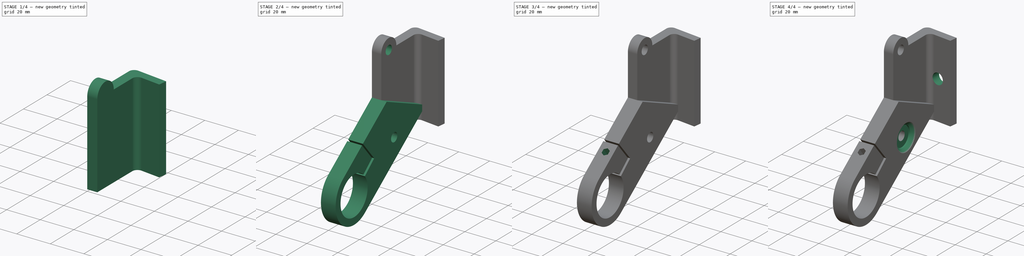
[diagram: build sequence overview — one tinted view per stage of 4, left to right]
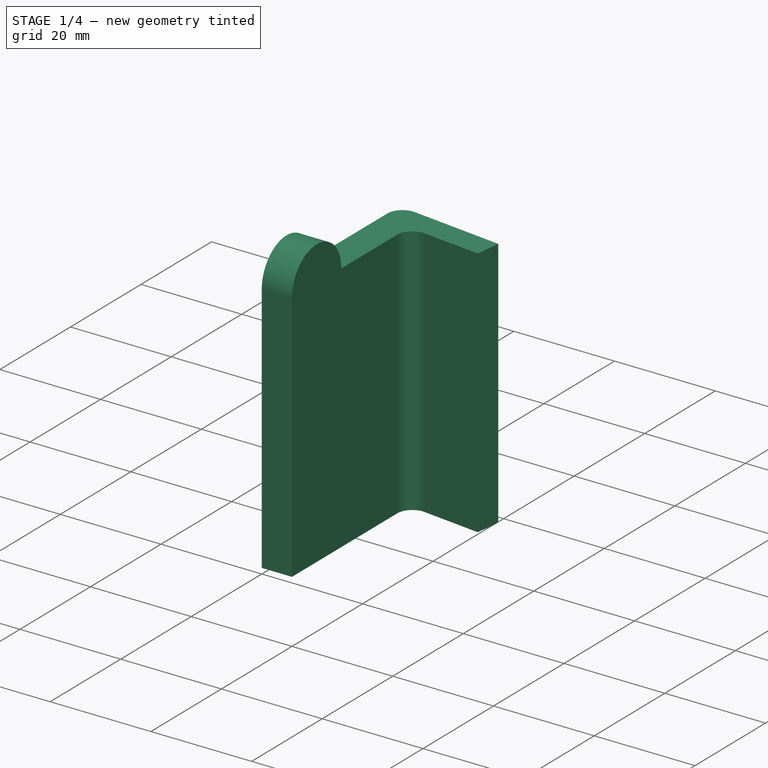
[diagram: stage 1 of 4 — iso view after this stage's code; geometry added in this stage tinted green]
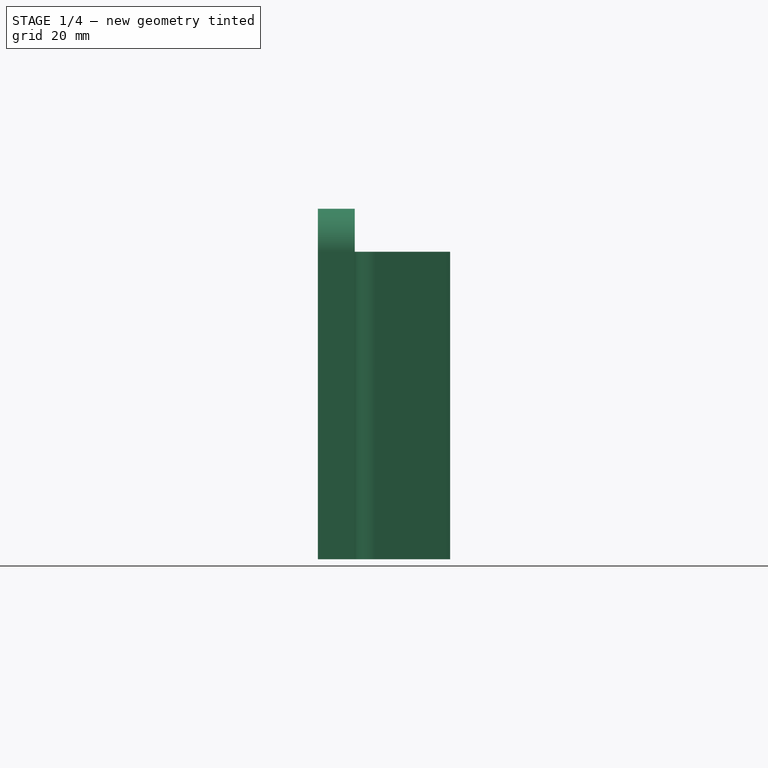
[diagram: stage 1 of 4 — front view after this stage's code; geometry added in this stage tinted green]
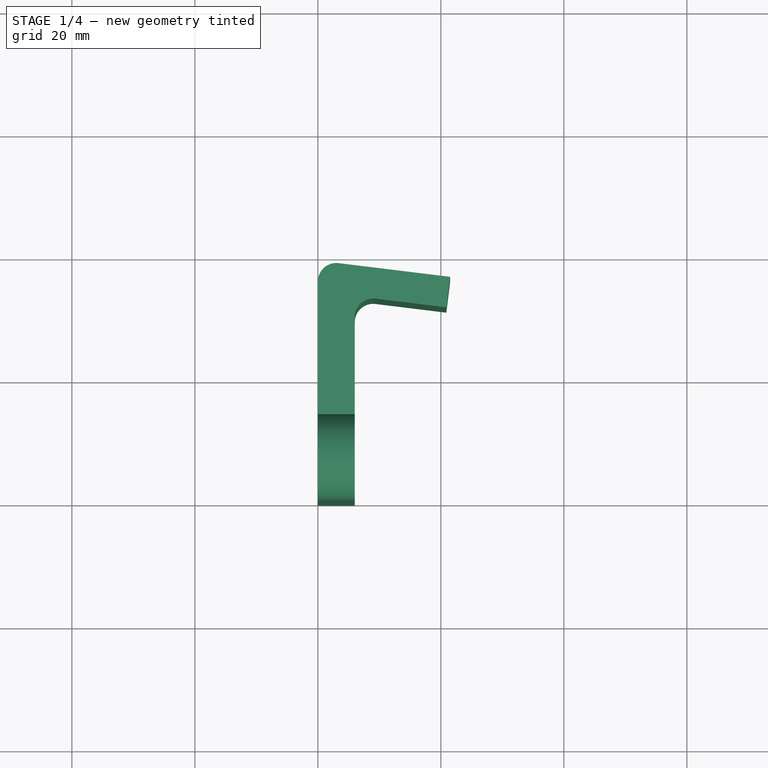
[diagram: stage 1 of 4 — top view after this stage's code; geometry added in this stage tinted green]
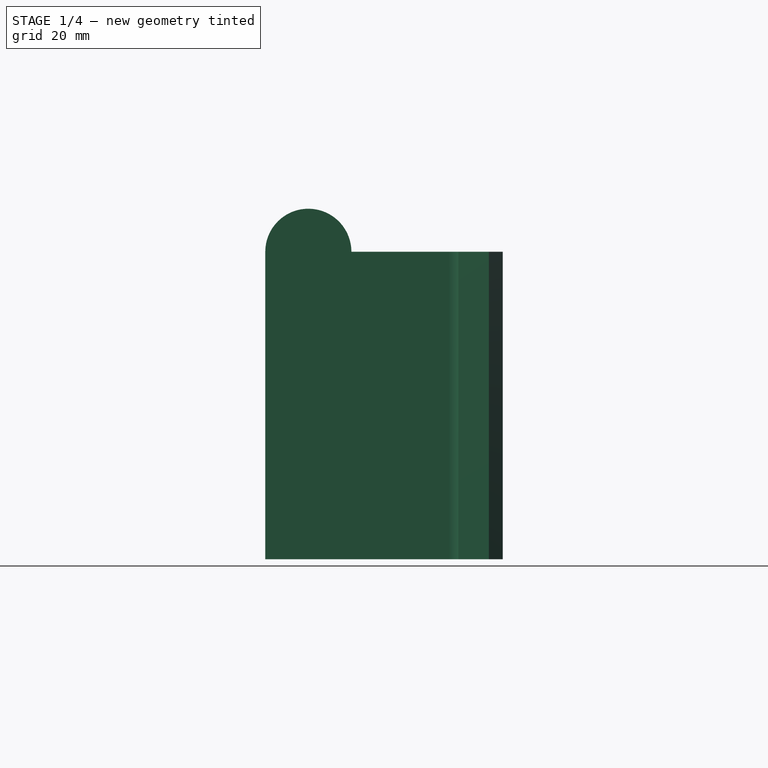
[diagram: stage 1 of 4 — right view after this stage's code; geometry added in this stage tinted green]
FCSTD DOCUMENT  (FreeCAD 0.19R)
Label: TailLightBracketForRack_Dual
License: All rights reserved
LicenseURL: http://en.wikipedia.org/wiki/All_rights_reserved
objects: Sketcher::SketchObject×11, PartDesign::Pocket×6, PartDesign::Pad×3, PartDesign::Fillet×1, PartDesign::Chamfer×1, PartDesign::Body×1, App::Part×1
note: 34 computed .brp shape members not serialized (recipe doc carries the construction recipe); baked Part::Feature solids carry a one-line shape summary decoded from their .brp

FEATURE [Sketcher::SketchObject] Sketch007
  FullyConstrained = true
  MapMode = 5
  Support = -> [XY_Plane001]
  sketch-geometry (6):
    g0: LineSegment StartX=0 StartY=0 StartZ=0 EndX=6 EndY=0 EndZ=0
    g1: LineSegment StartX=6 StartY=0 StartZ=0 EndX=6 EndY=33.2257 EndZ=0
    g2: LineSegment StartX=6 StartY=33.2257 StartZ=0 EndX=20.8882 EndY=31.3977 EndZ=0
    g3: LineSegment StartX=20.8882 StartY=31.3977 StartZ=0 EndX=21.4975 EndY=36.3604 EndZ=0
    g4: LineSegment StartX=21.4975 StartY=36.3604 StartZ=0 EndX=0 EndY=39 EndZ=0
    g5: LineSegment StartX=0 StartY=39 StartZ=0 EndX=0 EndY=0 EndZ=0
  constraints (17):
    c: PointOnObject(g0,g-1)
    c: Coincident(g0,g1)
    c: Vertical(g1)
    c: Coincident(g1,g2)
    c: Coincident(g2,g3)
    c: Coincident(g3,g4)
    c: Coincident(g4,g5)
    c: Coincident(g5,g0)
    c: Vertical(g5)
    c: Distance(g0) = 6
    c: Parallel(g2,g4)
    c: Perpendicular(g3,g2)
    c: Distance(g3) = 5
    c: Distance(g5) = 39
    c: Angle(g4) = 3.01942
    c: Distance(g2) = 15
    c: Coincident(g0,g-1)
FEATURE [PartDesign::Pad] Pad
  AllowMultiFace = false
  Direction = (1,1,1)
  Length = 50
  Length2 = 100
  Midplane = true
  Profile = -> Sketch007
  Type = 0
FEATURE [PartDesign::Fillet] Fillet
  Base = -> Pad [Edge14,Edge5]
  BaseFeature = -> Pad
  Radius = 3
  SupportTransform = false
FEATURE [Sketcher::SketchObject] Sketch009
  FullyConstrained = true
  MapMode = 5
  Placement = pos=(0,0,0) rot=(0.57735,-0.57735,-0.57735;2.0944rad)
  Support = -> [Fillet]
  sketch-geometry (2):
    g0: Circle CenterX=-7 CenterY=-25 CenterZ=0 NormalX=0 NormalY=0 NormalZ=1 AngleXU=0 Radius=7
    g1: Circle CenterX=-7 CenterY=25 CenterZ=0 NormalX=0 NormalY=0 NormalZ=1 AngleXU=0 Radius=7
  constraints (5):
    c: Radius(g1) = 7
    c: Equal(g1,g0)
    c: Symmetric(g1,g0,g-1)
    c: Distance(g1,g0) = 50
    c: DistanceX(g1) = -7
FEATURE [PartDesign::Pad] Pad001
  AllowMultiFace = false
  BaseFeature = -> Fillet
  Direction = (1,1,1)
  Length = 6
  Length2 = 100
  Profile = -> Sketch009
  Reversed = true
  Type = 0
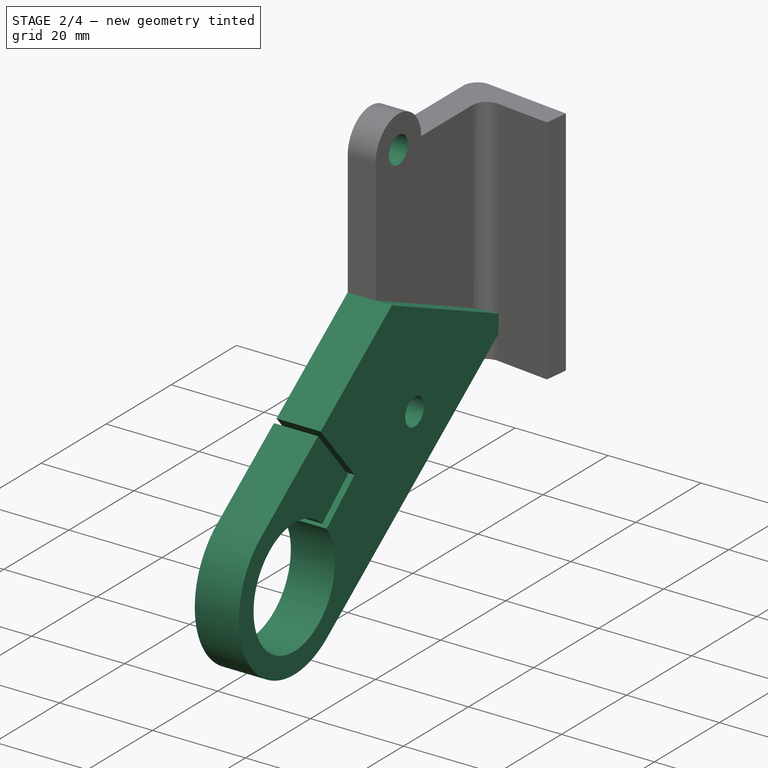
[diagram: stage 2 of 4 — iso view after this stage's code; geometry added in this stage tinted green]
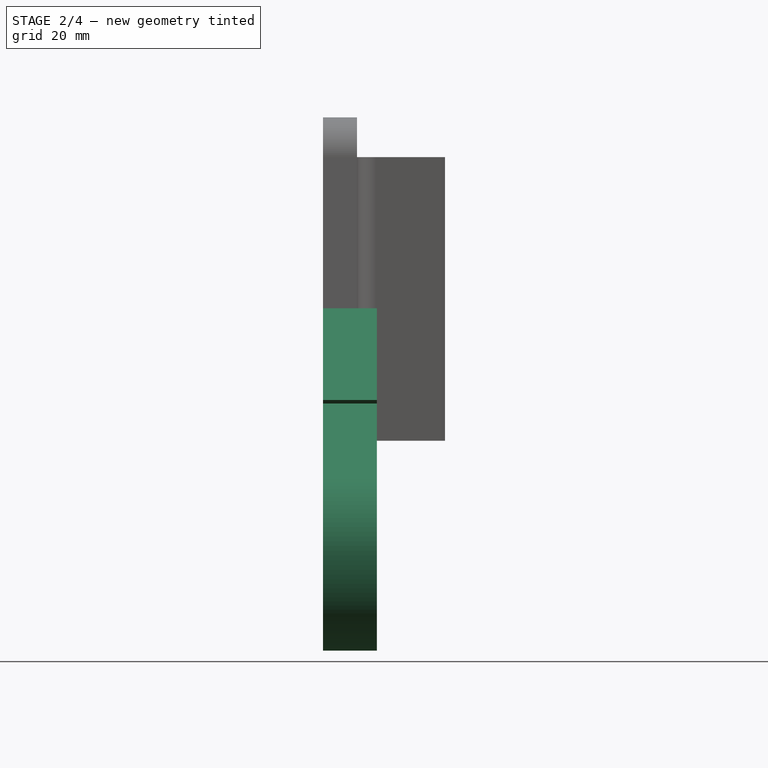
[diagram: stage 2 of 4 — front view after this stage's code; geometry added in this stage tinted green]
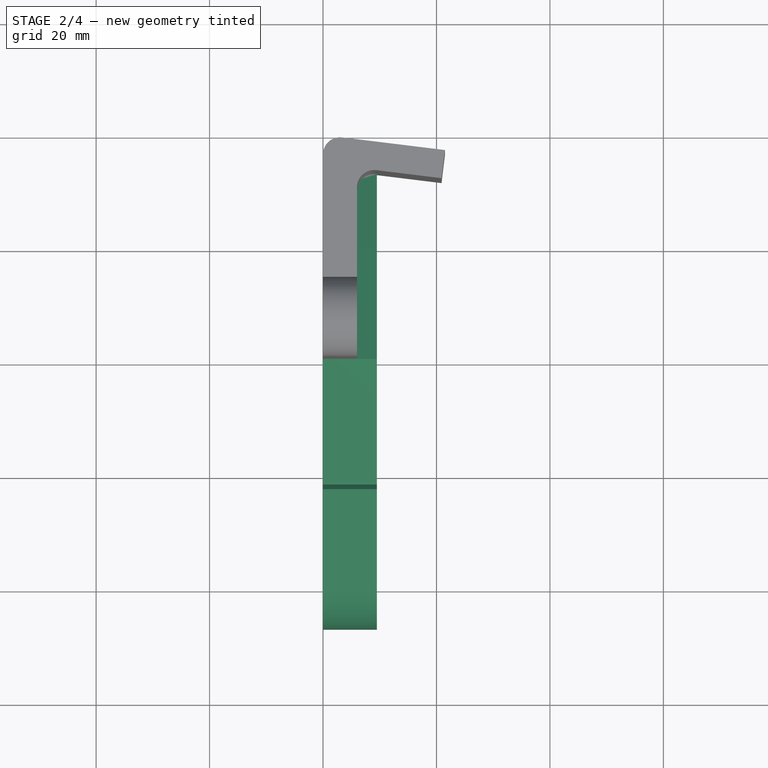
[diagram: stage 2 of 4 — top view after this stage's code; geometry added in this stage tinted green]
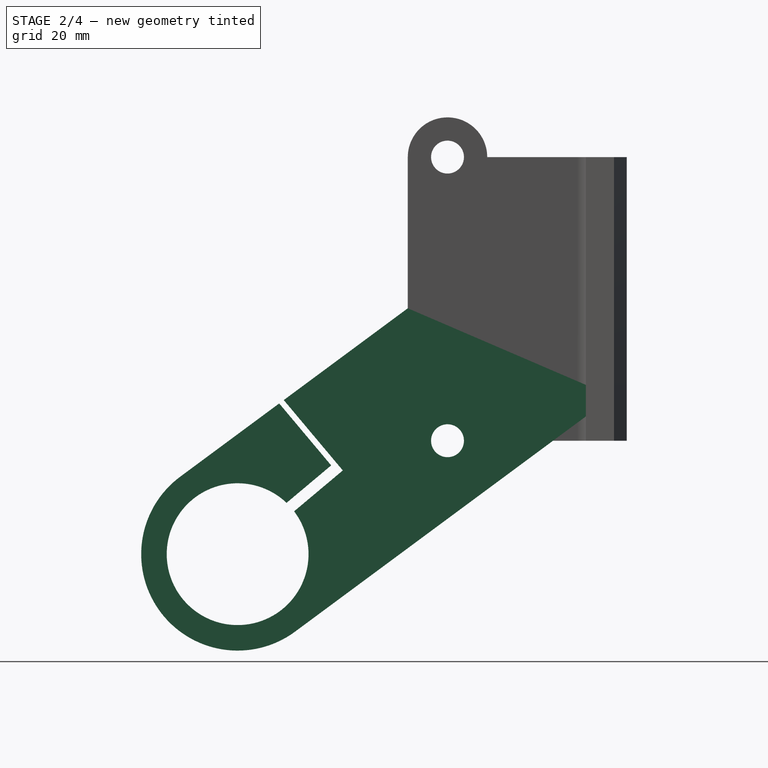
[diagram: stage 2 of 4 — right view after this stage's code; geometry added in this stage tinted green]
FEATURE [Sketcher::SketchObject] Sketch
  FullyConstrained = false
  MapMode = 5
  Placement = pos=(0,0,0) rot=(0.57735,-0.57735,-0.57735;2.0944rad)
  sketch-geometry (5):
    g0: LineSegment StartX=40.1126 StartY=-31.3349 StartZ=0 EndX=0 EndY=-1.65012 EndZ=0
    g1: ArcOfCircle CenterX=30 CenterY=-45 CenterZ=0 NormalX=0 NormalY=0 NormalZ=1 AngleXU=0 Radius=17 StartAngle=4.0753 EndAngle=7.21689
    g2: LineSegment StartX=19.8874 StartY=-58.6651 StartZ=0 EndX=-36.144 EndY=-17.1998 EndZ=0
    g3: LineSegment StartX=0 StartY=-1.65012 StartZ=0 EndX=-36.144 EndY=-17.1998 EndZ=0
    g4: Circle CenterX=30 CenterY=-45 CenterZ=0 NormalX=0 NormalY=0 NormalZ=1 AngleXU=0 Radius=12.5
  constraints (11):
    c: Diameter(g1) = 34
    c: Coincident(g3,g0)
    c: Coincident(g3,g2)
    c: Tangent(g2,g1) = 1.5708
    c: DistanceY(g1) = -45
    c: Coincident(g4,g1)
    c: Diameter(g4) = 25
    c: DistanceX(g1) = 30
    c: Tangent(g0,g1) = -1.5708
    c: PointOnObject(g0,g-2)
    c: Parallel(g2,g0)
FEATURE [PartDesign::Pad] Pad002
  BaseFeature = -> Pad001
  Direction = (1,1,1)
  Length = 9.5
  Length2 = 100
  Profile = -> Sketch
  Reversed = true
  Type = 0
FEATURE [Sketcher::SketchObject] Sketch003
  FullyConstrained = true
  MapMode = 5
  Placement = pos=(0,0,0) rot=(0.57735,-0.57735,-0.57735;2.0944rad)
  Support = -> [Pad002]
  sketch-geometry (2):
    g0: Circle CenterX=-7 CenterY=-25 CenterZ=0 NormalX=0 NormalY=0 NormalZ=1 AngleXU=0 Radius=2.9
    g1: Circle CenterX=-7 CenterY=25 CenterZ=0 NormalX=0 NormalY=0 NormalZ=1 AngleXU=0 Radius=2.9
  constraints (5):
    c: Radius(g1) = 2.9
    c: Equal(g1,g0)
    c: Symmetric(g1,g0,g-1)
    c: Distance(g1,g0) = 50
    c: DistanceX(g1) = -7
FEATURE [Sketcher::SketchObject] Sketch012  label="ref"
  FullyConstrained = false
  MapMode = 5
  Placement = pos=(0,0,0) rot=(0.57735,-0.57735,-0.57735;2.0944rad)
  sketch-geometry (5):
    g0: LineSegment StartX=-28.5 StartY=45 StartZ=0 EndX=16.5 EndY=45 EndZ=0
    g1: LineSegment StartX=16.5 StartY=45 StartZ=0 EndX=16.5 EndY=-45 EndZ=0
    g2: LineSegment StartX=16.5 StartY=-45 StartZ=0 EndX=-28.5 EndY=-45 EndZ=0
    g3: LineSegment StartX=-28.5 StartY=-45 StartZ=0 EndX=-28.5 EndY=45 EndZ=0
    g4: LineSegment StartX=-6 StartY=44.1392 StartZ=0 EndX=-6 EndY=-45.9939 EndZ=0
  constraints (12):
    c: Coincident(g0,g1)
    c: Coincident(g1,g2)
    c: Coincident(g2,g3)
    c: Coincident(g3,g0)
    c: Horizontal(g0)
    c: Horizontal(g2)
    c: Vertical(g3)
    c: Symmetric(g0,g0,g4)
    c: DistanceX(g4) = -6
    c: Distance(g0) = 45
    c: Distance(g1) = 90
    c: Symmetric(g0,g1,g-1)
FEATURE [Sketcher::SketchObject] Sketch013
  FullyConstrained = false
  MapMode = 5
  Placement = pos=(0,0,0) rot=(0.57735,-0.57735,-0.57735;2.0944rad)
  sketch-geometry (6):
    g0: LineSegment StartX=22.6999 StartY=-37.0623 StartZ=0 EndX=13.5074 EndY=-29.3488 EndZ=0
    g1: LineSegment StartX=13.5074 StartY=-29.3488 StartZ=0 EndX=26.6302 EndY=-13.7096 EndZ=0
    g2: LineSegment StartX=26.6302 StartY=-13.7096 StartZ=0 EndX=25.8642 EndY=-13.0668 EndZ=0
    g3: LineSegment StartX=25.8642 StartY=-13.0668 StartZ=0 EndX=11.4557 EndY=-30.2381 EndZ=0
    g4: LineSegment StartX=11.4557 StartY=-30.2381 StartZ=0 EndX=21.4143 EndY=-38.5944 EndZ=0
    g5: LineSegment StartX=21.4143 StartY=-38.5944 StartZ=0 EndX=22.6999 EndY=-37.0623 EndZ=0
  constraints (15):
    c: Coincident(g0,g1)
    c: Coincident(g1,g2)
    c: Coincident(g2,g3)
    c: Coincident(g3,g4)
    c: Coincident(g4,g5)
    c: Coincident(g5,g0)
    c: Distance(g2) = 1
    c: Parallel(g1,g3)
    c: Parallel(g4,g0)
    c: Perpendicular(g1,g0)
    c: Perpendicular(g3,g2)
    c: Perpendicular(g4,g5)
    c: Distance(g5) = 2
    c: Distance(g0) = 12
    c: Angle(g3) = -2.26893
FEATURE [Sketcher::SketchObject] Sketch014
  FullyConstrained = false
  MapMode = 5
  Placement = pos=(0,0.311228,-0.406819) rot=(1,0,0;0.65305rad)
  sketch-geometry (7):
    g0: LineSegment StartX=6.15 StartY=-35.6445 StartZ=0 EndX=6.15 EndY=-34.0279 EndZ=0
    g1: LineSegment StartX=6.15 StartY=-34.0279 StartZ=0 EndX=4.75 EndY=-33.2197 EndZ=0
    g2: LineSegment StartX=4.75 StartY=-33.2197 StartZ=0 EndX=3.35 EndY=-34.0279 EndZ=0
    g3: LineSegment StartX=3.35 StartY=-34.0279 StartZ=0 EndX=3.35 EndY=-35.6445 EndZ=0
    g4: LineSegment StartX=3.35 StartY=-35.6445 StartZ=0 EndX=4.75 EndY=-36.4528 EndZ=0
    g5: LineSegment StartX=4.75 StartY=-36.4528 StartZ=0 EndX=6.15 EndY=-35.6445 EndZ=0
    g6: Circle CenterX=4.75 CenterY=-34.8362 CenterZ=0 NormalX=0 NormalY=0 NormalZ=1 AngleXU=0 Radius=1.61658
  constraints (16):
    c: Coincident(g0,g1)
    c: Coincident(g1,g2)
    c: Coincident(g2,g3)
    c: Coincident(g3,g4)
    c: Coincident(g4,g5)
    c: Coincident(g5,g0)
    c: Equal(g0, g1-g5) x5
    c: PointOnObject(g0,g6)
    c: PointOnObject(g1,g6)
    c: PointOnObject(g2,g6)
    c: PointOnObject(g3,g6)
    c: PointOnObject(g4,g6)
    c: PointOnObject(g5,g6)
    c: Vertical(g3)
    c: Distance(g0,g2) = 2.8
    c: DistanceX(g6) = 4.75
FEATURE [Sketcher::SketchObject] Sketch015
  FullyConstrained = false
  MapMode = 5
  Placement = pos=(0,0.311228,-0.406819) rot=(1,0,0;0.65305rad)
  sketch-geometry (7):
    g0: LineSegment StartX=4.69089 StartY=-37.1155 StartZ=0 EndX=6.69089 EndY=-35.9608 EndZ=0
    g1: LineSegment StartX=6.69089 StartY=-35.9608 StartZ=0 EndX=6.69089 EndY=-33.6514 EndZ=0
    g2: LineSegment StartX=6.69089 StartY=-33.6514 StartZ=0 EndX=4.69089 EndY=-32.4967 EndZ=0
    g3: LineSegment StartX=4.69089 StartY=-32.4967 StartZ=0 EndX=2.69089 EndY=-33.6514 EndZ=0
    g4: LineSegment StartX=2.69089 StartY=-33.6514 StartZ=0 EndX=2.69089 EndY=-35.9608 EndZ=0
    g5: LineSegment StartX=2.69089 StartY=-35.9608 StartZ=0 EndX=4.69089 EndY=-37.1155 EndZ=0
    g6: Circle CenterX=4.69089 CenterY=-34.8061 CenterZ=0 NormalX=0 NormalY=0 NormalZ=1 AngleXU=0 Radius=2.3094
  constraints (15):
    c: Coincident(g0,g1)
    c: Coincident(g1,g2)
    c: Coincident(g2,g3)
    c: Coincident(g3,g4)
    c: Coincident(g4,g5)
    c: Coincident(g5,g0)
    c: Equal(g0, g1-g5) x5
    c: PointOnObject(g0,g6)
    c: PointOnObject(g1,g6)
    c: PointOnObject(g2,g6)
    c: PointOnObject(g3,g6)
    c: PointOnObject(g4,g6)
    c: PointOnObject(g5,g6)
    c: Vertical(g1)
    c: Distance(g1,g3) = 4
FEATURE [PartDesign::Pocket] Pocket
  BaseFeature = -> Pad002
  Length = 5
  Length2 = 100
  Profile = -> Sketch013
  Type = 1
FEATURE [PartDesign::Pocket] Pocket001
  BaseFeature = -> Pocket
  Length = 5
  Length2 = 100
  Profile = -> Sketch003
  Type = 1
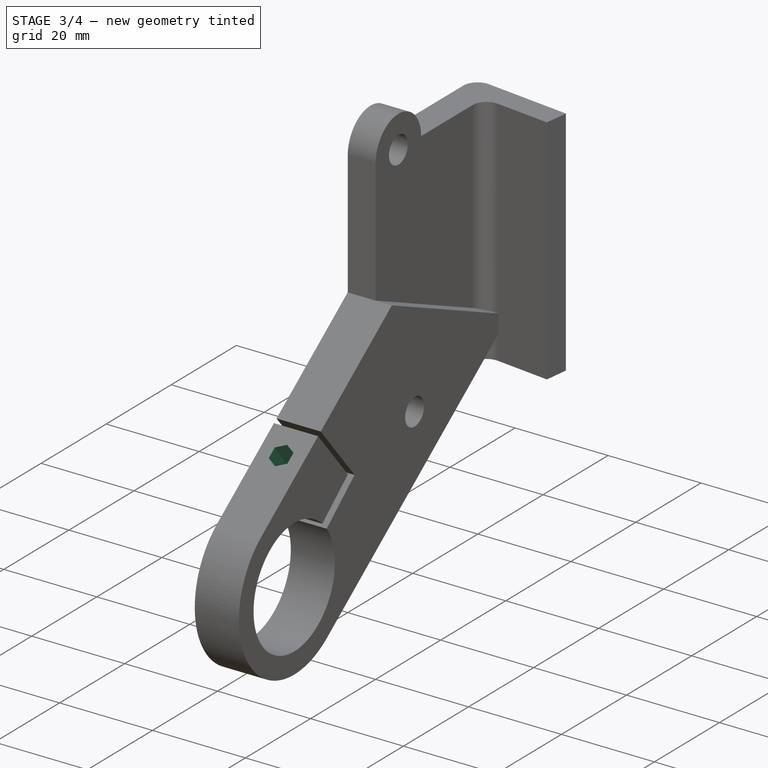
[diagram: stage 3 of 4 — iso view after this stage's code; geometry added in this stage tinted green]
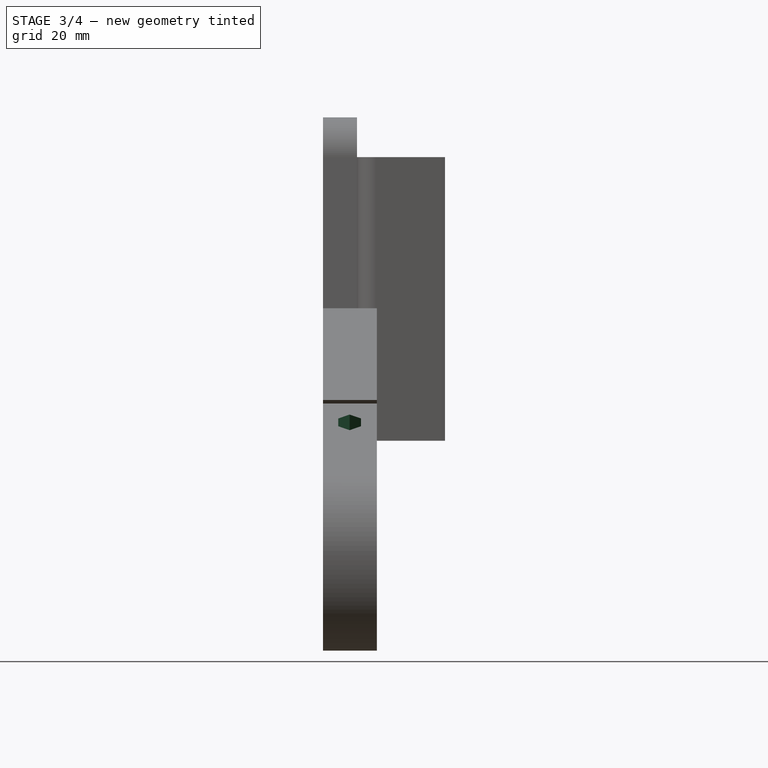
[diagram: stage 3 of 4 — front view after this stage's code; geometry added in this stage tinted green]
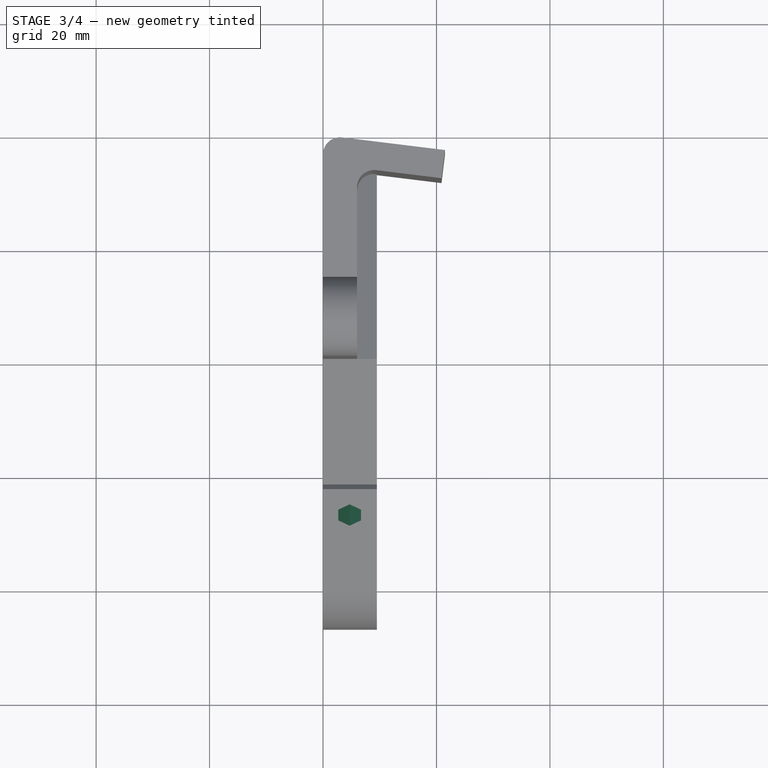
[diagram: stage 3 of 4 — top view after this stage's code; geometry added in this stage tinted green]
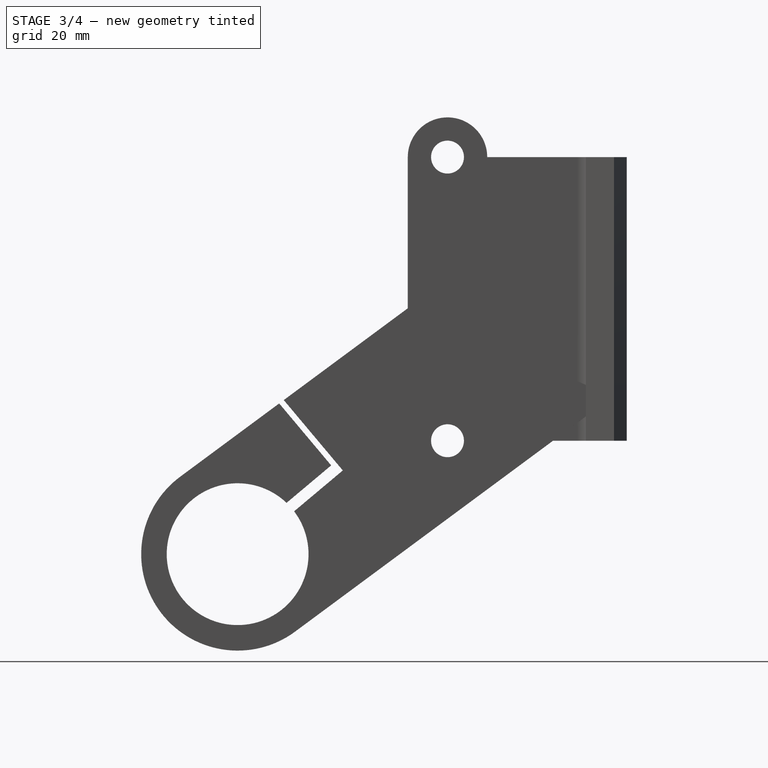
[diagram: stage 3 of 4 — right view after this stage's code; geometry added in this stage tinted green]
FEATURE [PartDesign::Pocket] Pocket002
  BaseFeature = -> Pocket001
  Length = 16
  Length2 = 100
  Profile = -> Sketch015
  Type = 0
FEATURE [PartDesign::Pocket] Pocket003
  BaseFeature = -> Pocket002
  Length = 27
  Length2 = 100
  Profile = -> Sketch014
  Type = 0
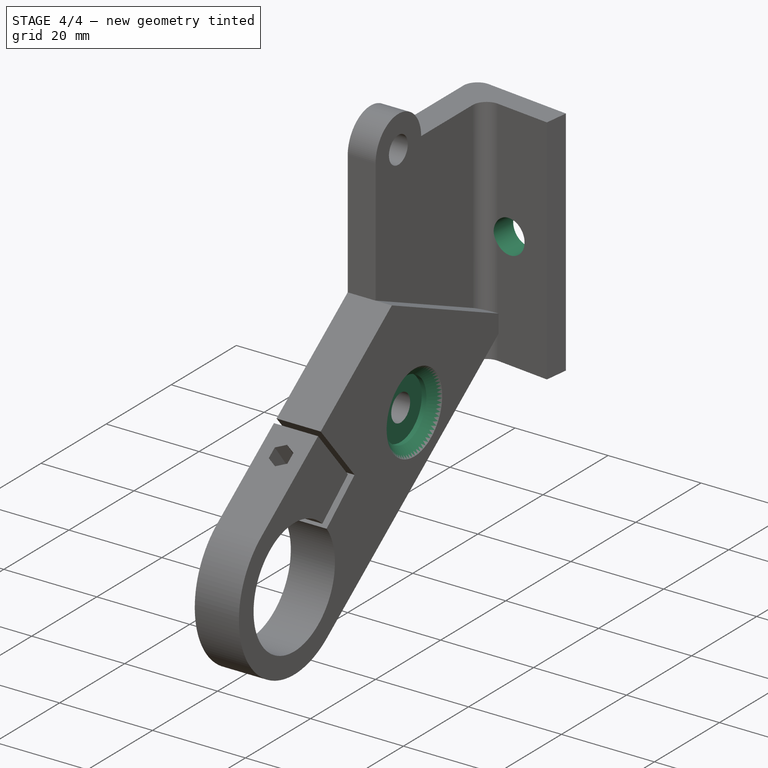
[diagram: stage 4 of 4 — iso view after this stage's code; geometry added in this stage tinted green]
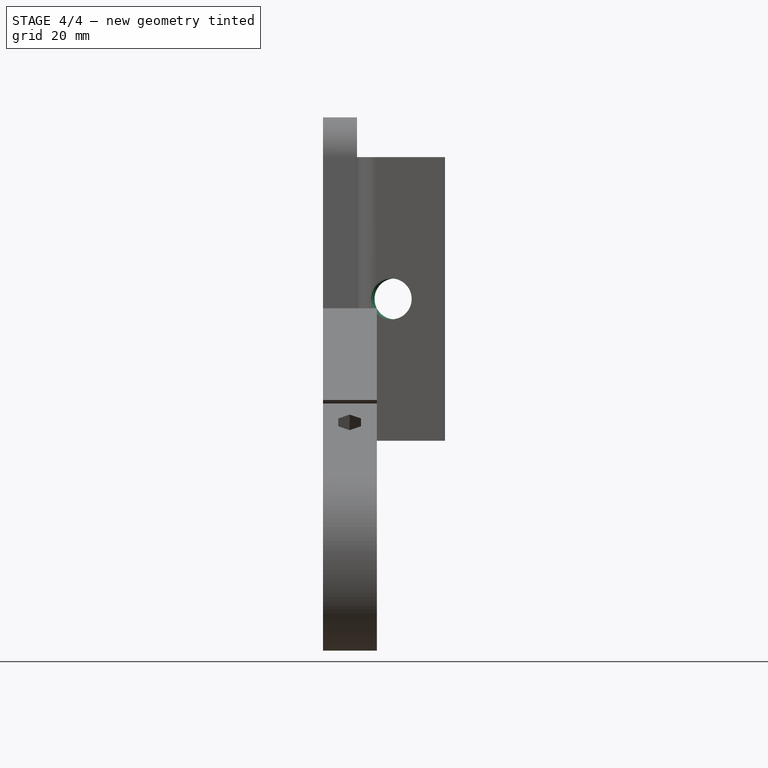
[diagram: stage 4 of 4 — front view after this stage's code; geometry added in this stage tinted green]
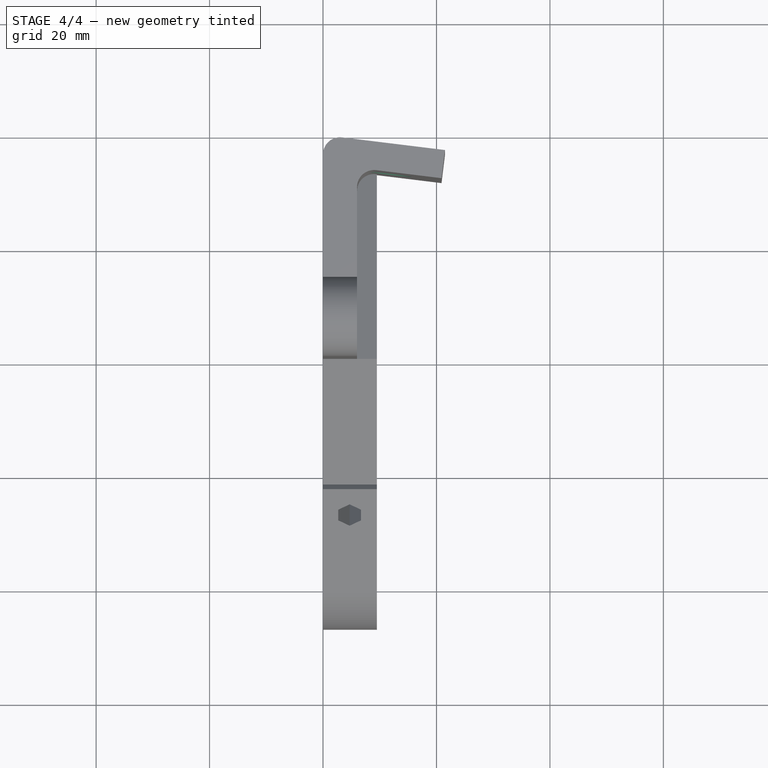
[diagram: stage 4 of 4 — top view after this stage's code; geometry added in this stage tinted green]
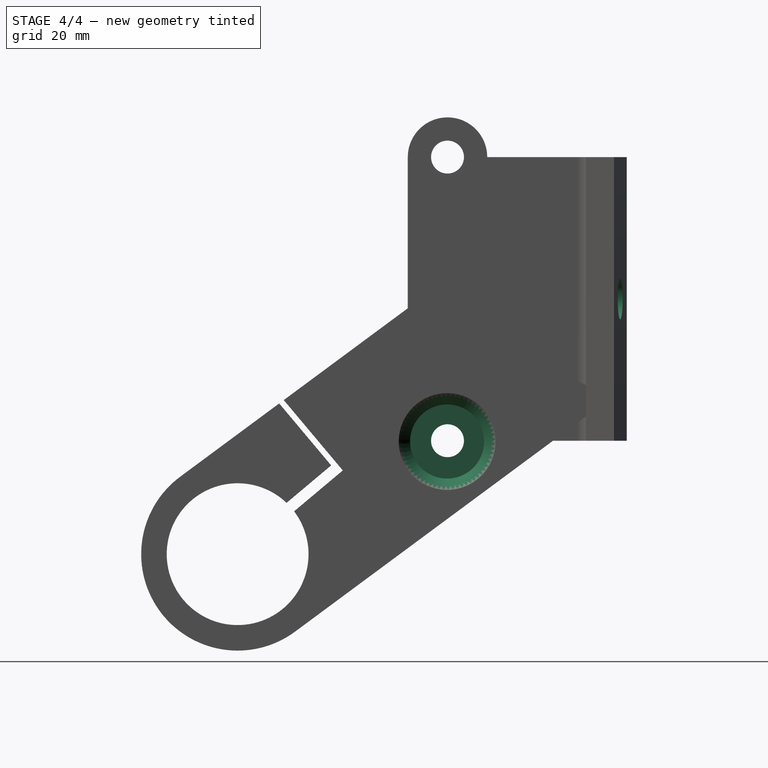
[diagram: stage 4 of 4 — right view after this stage's code; geometry added in this stage tinted green]
FEATURE [Sketcher::SketchObject] Sketch008
  FullyConstrained = true
  MapMode = 5
  Placement = pos=(4.71748,38.4208,0) rot=(0.043208,0.706446,0.706446;3.05523rad)
  Support = -> [Pocket003]
  sketch-geometry (1):
    g0: Circle CenterX=-8 CenterY=0 CenterZ=0 NormalX=0 NormalY=0 NormalZ=1 AngleXU=0 Radius=3.6
  constraints (3):
    c: PointOnObject(g0,g-1)
    c: DistanceX(g0) = -8
    c: Diameter(g0) = 7.2
FEATURE [Sketcher::SketchObject] Sketch016
  FullyConstrained = true
  MapMode = 5
  Placement = pos=(4.71748,38.4208,0) rot=(0.043208,0.706446,0.706446;3.05523rad)
  Support = -> [Pocket003]
FEATURE [PartDesign::Pocket] Pocket004
  BaseFeature = -> Pocket003
  Length = 10
  Length2 = 100
  Profile = -> Sketch008
  Type = 0
FEATURE [Sketcher::SketchObject] Sketch017
  FullyConstrained = false
  MapMode = 5
  Placement = pos=(9.5,0,0) rot=(0.57735,0.57735,0.57735;2.0944rad)
  Support = -> [Pocket004]
  sketch-geometry (1):
    g0: Circle CenterX=6.9335 CenterY=-25.1394 CenterZ=0 NormalX=0 NormalY=0 NormalZ=1 AngleXU=0 Radius=6.52829
FEATURE [PartDesign::Pocket] Pocket005
  BaseFeature = -> Pocket004
  Length = 3
  Length2 = 100
  Profile = -> Sketch017
  Type = 0
FEATURE [PartDesign::Chamfer] Chamfer
  Angle = 45
  Base = -> Pocket005 [Edge47]
  BaseFeature = -> Pocket005
  ChamferType = 0
  FlipDirection = false
  Size = 2
  Size2 = 1
  SupportTransform = false
FEATURE [PartDesign::Body] Pad001Body
  Group = -> [Sketch007,Pad,Fillet,Sketch009,Pad001,Sketch008,Sketch003,Sketch,Pad002,Sketch012,Sketch013,Sketch014,Sketch015,Pocket,Pocket001,Pocket002,Pocket003,Sketch016,Pocket004,Sketch017,Pocket005,Chamfer]
  Origin = -> Origin001
  Tip = -> Chamfer
FEATURE [App::Part] Part
  Group = -> [Pad001Body]
  Origin = -> Origin
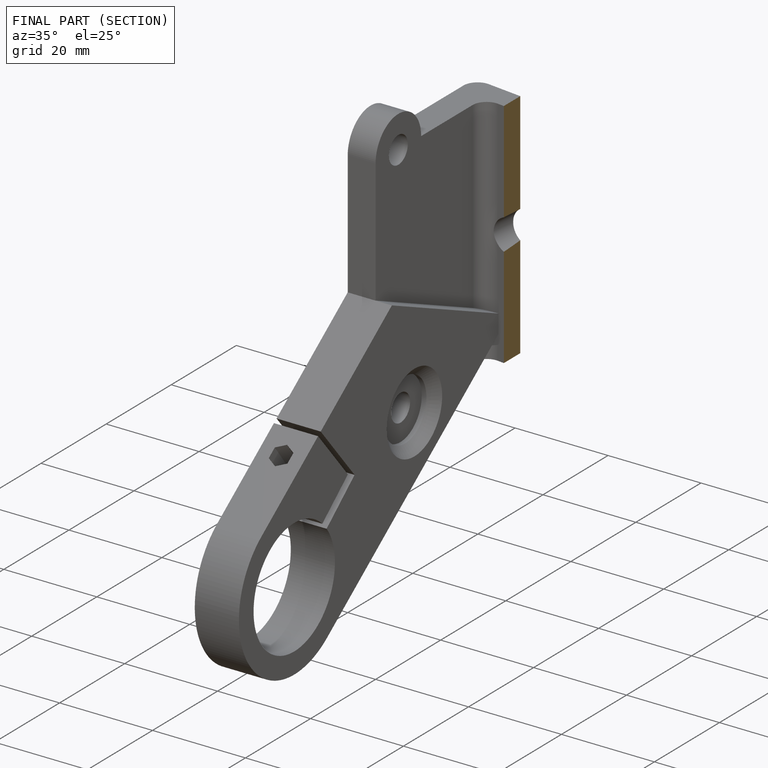
[diagram: finished part — half-section view (interior)]
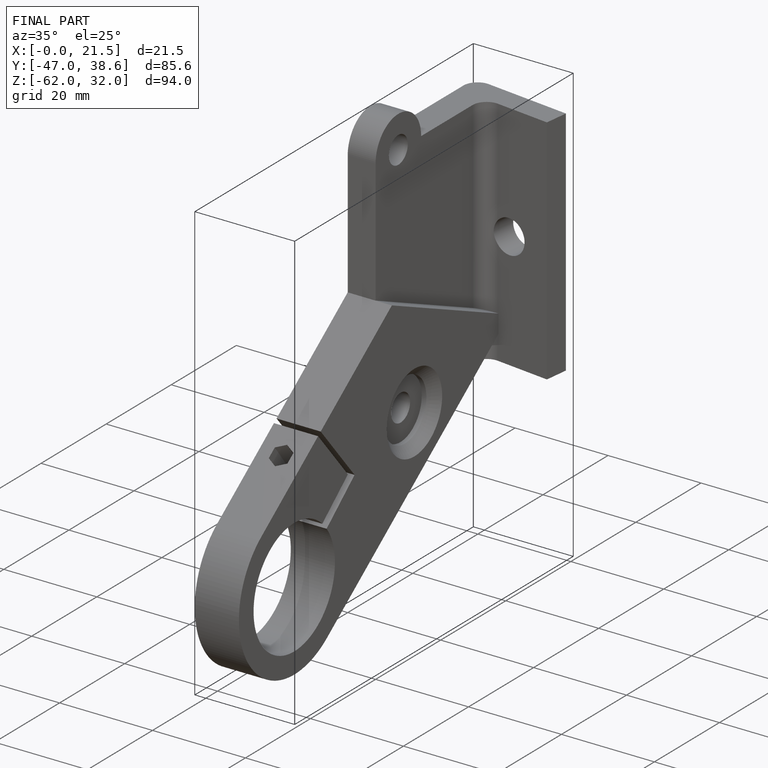
[diagram: finished part — iso view with bounding-box wireframe]
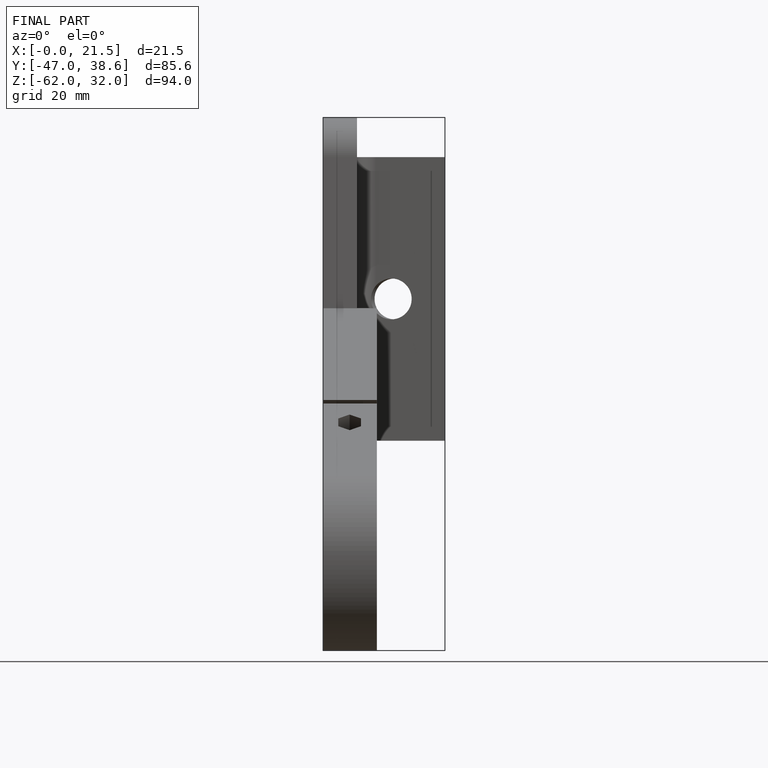
[diagram: finished part — front view with bounding-box wireframe]
